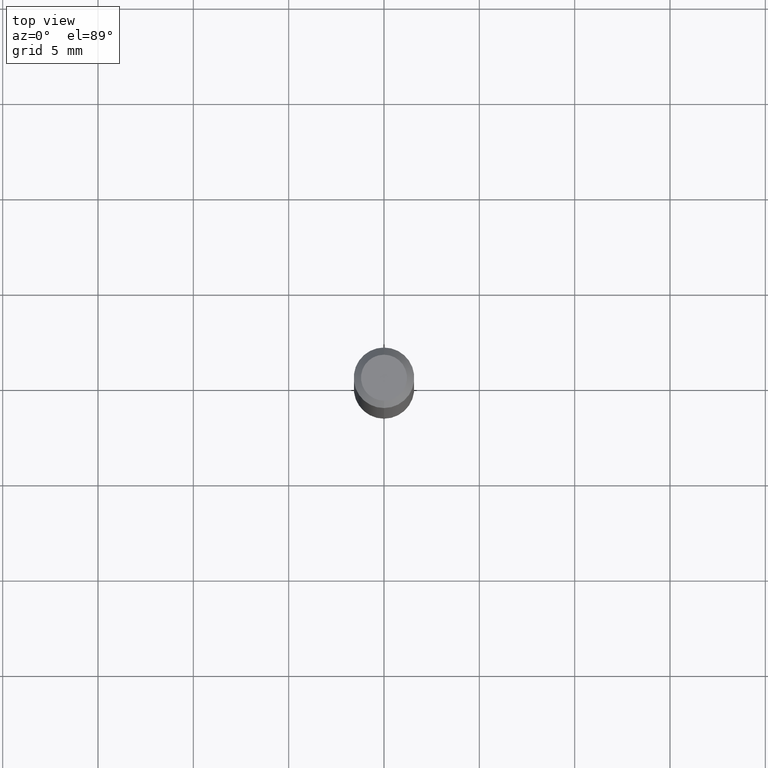
[diagram: clean part render]
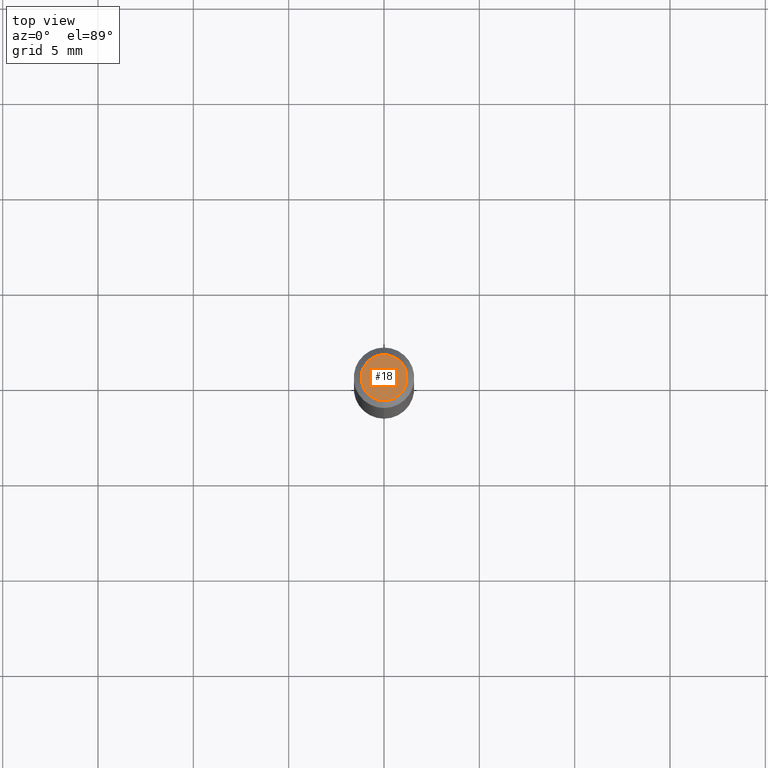
[diagram: same view with one face highlighted and labeled with its STEP entity id]
A machine part, top view. The second image highlights one B-rep face of the part: STEP entity #18.
In plain terms, the highlighted planar face has unit normal (0, -0, -1).
Its self-contained STEP definition (entity closure, byte-faithful):
#18 = ADVANCED_FACE ( 'NONE', ( #199 ), #410, .F. ) ;
#40 = CARTESIAN_POINT ( 'NONE',  ( 3.316907271900976096E-16, 0.04749999999999999362, -3.024361068583656852E-16 ) ) ;
#54 = AXIS2_PLACEMENT_3D ( 'NONE', #130, #122, #279 ) ;
#114 = AXIS2_PLACEMENT_3D ( 'NONE', #283, #447, #181 ) ;
#122 = DIRECTION ( 'NONE',  ( -2.445517508157003732E-29, 3.491411594847488118E-15, 1.000000000000000000 ) ) ;
#130 = CARTESIAN_POINT ( 'NONE',  ( 6.680863114206711395E-45, -9.538121425312932952E-31, -2.731881122062200662E-16 ) ) ;
#162 = VERTEX_POINT ( 'NONE', #248 ) ;
#181 = DIRECTION ( 'NONE',  ( -6.982962677686266711E-15, -1.000000000000000000, 3.491411594847488512E-15 ) ) ;
#197 = DIRECTION ( 'NONE',  ( 2.445517508157003172E-29, -3.491411594847488118E-15, -1.000000000000000000 ) ) ;
#199 = FACE_OUTER_BOUND ( 'NONE', #439, .T. ) ;
#215 = ORIENTED_EDGE ( 'NONE', *, *, #359, .T. ) ;
#248 = CARTESIAN_POINT ( 'NONE',  ( 3.840629472727447874E-16, 0.04749999999999999362, -4.390301629614757676E-16 ) ) ;
#250 = AXIS2_PLACEMENT_3D ( 'NONE', #40, #197, #371 ) ;
#276 = CIRCLE ( 'NONE', #54, 0.04749999999999999362 ) ;
#279 = DIRECTION ( 'NONE',  ( -6.982962677686266711E-15, -1.000000000000000000, 3.491411594847488512E-15 ) ) ;
#283 = CARTESIAN_POINT ( 'NONE',  ( 6.680863114206711395E-45, -9.538121425312932952E-31, -2.731881122062200662E-16 ) ) ;
#300 = CIRCLE ( 'NONE', #114, 0.04749999999999999362 ) ;
#302 = ORIENTED_EDGE ( 'NONE', *, *, #306, .T. ) ;
#306 = EDGE_CURVE ( 'NONE', #361, #162, #276, .T. ) ;
#359 = EDGE_CURVE ( 'NONE', #162, #361, #300, .T. ) ;
#361 = VERTEX_POINT ( 'NONE', #392 ) ;
#371 = DIRECTION ( 'NONE',  ( 6.982962677686265922E-15, 1.000000000000000000, -3.491411594847488118E-15 ) ) ;
#392 = CARTESIAN_POINT ( 'NONE',  ( -3.773273898774340269E-16, -0.04749999999999999362, -1.073460614509644018E-16 ) ) ;
#410 = PLANE ( 'NONE',  #250 ) ;
#439 = EDGE_LOOP ( 'NONE', ( #215, #302 ) ) ;
#447 = DIRECTION ( 'NONE',  ( -2.445517508157003732E-29, 3.491411594847488118E-15, 1.000000000000000000 ) ) ;